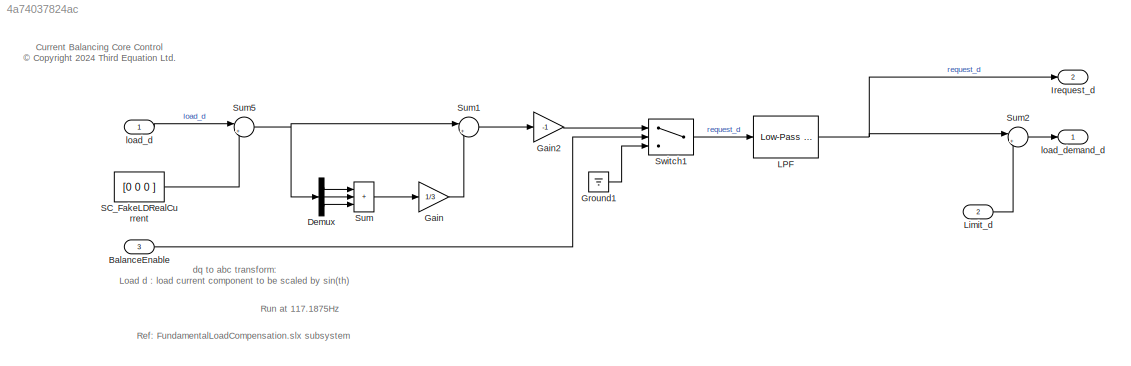
MODEL slx_4a74037824ac
KIND model
BLOCK [Inport] BalanceEnable
  OutDataTypeStr = boolean
  Port = 3
  PortDimensions = 1
BLOCK [Demux] Demux
  Outputs = 3
BLOCK [Gain] Gain
  Gain = 1/3
BLOCK [Gain] Gain2
  Gain = -1
BLOCK [Ground] Ground1
BLOCK [Outport] Irequest_d
  OutDataTypeStr = single
  Port = 2
  PortDimensions = 3
BLOCK [Reference] LPF  REF=eeGeneralControl/Low-Pass Filter
(Discrete or Continuous)
  SourceBlock = eeGeneralControl/Low-Pass Filter\n(Discrete or Continuous)
  SourceType = Low-Pass Filter (Discrete or Continuous)
BLOCK [Inport] Limit_d
  OutDataTypeStr = single
  Port = 2
  PortDimensions = 3
BLOCK [Constant] SC_FakeLDRealCurrent
  OutDataTypeStr = single
  Value = [0 0 0 ]
BLOCK [Sum] Sum
  IconShape = rectangular
  Inputs = +++
BLOCK [Sum] Sum1
  Inputs = |+-
BLOCK [Sum] Sum2
  Inputs = |+-
BLOCK [Sum] Sum5
  Inputs = |++
BLOCK [Switch] Switch1
  Criteria = u2 > Threshold
  InputSameDT = off
  SaturateOnIntegerOverflow = off
BLOCK [Inport] load_d
  OutDataTypeStr = single
  PortDimensions = 3
BLOCK [Outport] load_demand_d
  OutDataTypeStr = single
  PortDimensions = 3
ANNOTATION (root): Current Balancing Core Control <copyright redacted>
ANNOTATION (root): Run at 117.1875Hz
ANNOTATION (root): Ref: FundamentalLoadCompensation.slx subsystem
ANNOTATION (root): dq to abc transform: Load d : load current component to be scaled by sin(th)
LINE BalanceEnable:1 -> Switch1:2
LINE Demux:1 -> Sum:1
LINE Demux:2 -> Sum:2
LINE Demux:3 -> Sum:3
LINE Gain2:1 -> Switch1:1
LINE Gain:1 -> Sum1:2
LINE Ground1:1 -> Switch1:3
NET LPF:1 -> Irequest_d:1, Sum2:1
LINE Limit_d:1 -> Sum2:2
LINE SC_FakeLDRealCurrent:1 -> Sum5:2
LINE Sum1:1 -> Gain2:1
LINE Sum2:1 -> load_demand_d:1
NET Sum5:1 -> Demux:1, Sum1:1
LINE Sum:1 -> Gain:1
LINE Switch1:1 -> LPF:1
LINE load_d:1 -> Sum5:1
note: NET lines group one-source signal fan-out (src -> all destinations, sorted); 1:1 wires keep LINE
